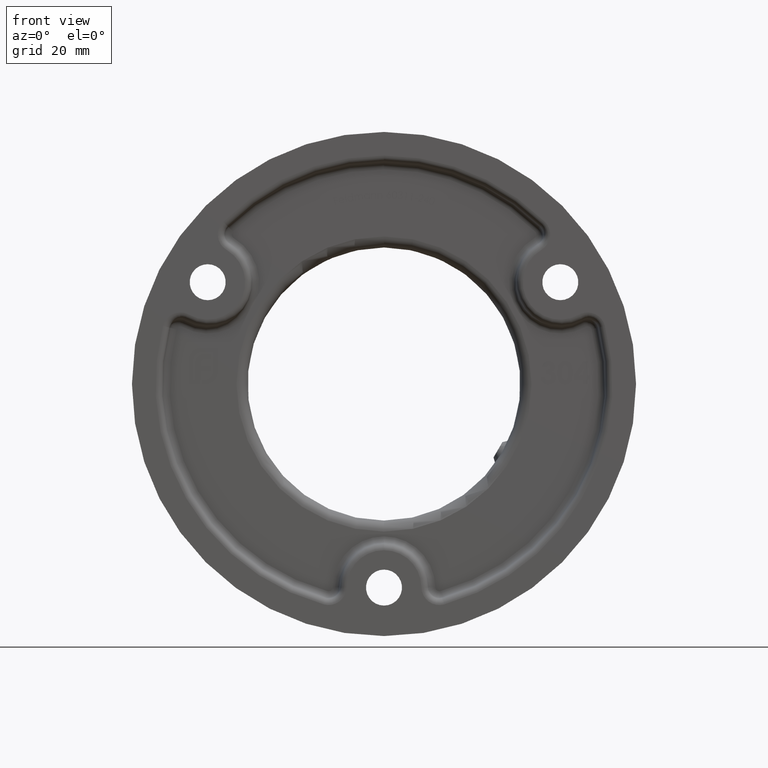
[diagram: clean part render]
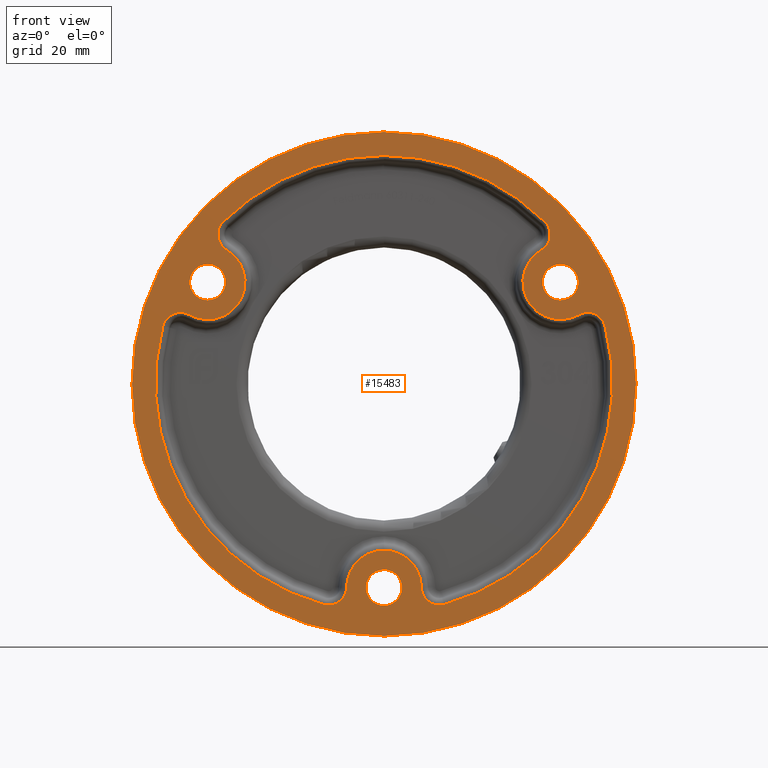
[diagram: same view with one face highlighted and labeled with its STEP entity id]
A machine part, front view. The second image highlights one B-rep face of the part: STEP entity #15483.
In plain terms, the highlighted planar face has unit normal (0, 1, 0).
Its self-contained STEP definition (entity closure, byte-faithful):
#33 = ORIENTED_EDGE ( 'NONE', *, *, #13000, .T. ) ;
#52 = CARTESIAN_POINT ( 'NONE',  ( 0.000000000000000000, 0.000000000000000000, -36.75000000000000000 ) ) ;
#440 = EDGE_CURVE ( 'NONE', #10031, #14922, #17151, .T. ) ;
#532 = CARTESIAN_POINT ( 'NONE',  ( 0.000000000000000000, 0.000000000000000000, 41.25000000000000000 ) ) ;
#540 = CARTESIAN_POINT ( 'NONE',  ( -29.03707906009376316, 0.000000000000000000, 29.29864399008706144 ) ) ;
#565 = DIRECTION ( 'NONE',  ( 0.000000000000000000, 0.000000000000000000, 1.000000000000000000 ) ) ;
#729 = FACE_BOUND ( 'NONE', #15085, .T. ) ;
#745 = ORIENTED_EDGE ( 'NONE', *, *, #19442, .T. ) ;
#1175 = FACE_BOUND ( 'NONE', #11156, .T. ) ;
#1508 = CARTESIAN_POINT ( 'NONE',  ( 0.000000000000000000, 0.000000000000000000, -36.75000000000000000 ) ) ;
#1526 = DIRECTION ( 'NONE',  ( -0.000000000000000000, -1.000000000000000000, -0.000000000000000000 ) ) ;
#1615 = DIRECTION ( 'NONE',  ( 0.000000000000000000, 0.000000000000000000, 1.000000000000000000 ) ) ;
#1662 = AXIS2_PLACEMENT_3D ( 'NONE', #2095, #2026, #15028 ) ;
#1788 = AXIS2_PLACEMENT_3D ( 'NONE', #1508, #15988, #20913 ) ;
#1829 = VERTEX_POINT ( 'NONE', #10532 ) ;
#1893 = FACE_BOUND ( 'NONE', #11206, .T. ) ;
#1928 = EDGE_CURVE ( 'NONE', #15359, #6744, #7937, .T. ) ;
#2009 = CIRCLE ( 'NONE', #20270, 3.250000000000002665 ) ;
#2026 = DIRECTION ( 'NONE',  ( 0.000000000000000000, 1.000000000000000000, 0.000000000000000000 ) ) ;
#2095 = CARTESIAN_POINT ( 'NONE',  ( 0.000000000000000000, 0.000000000000000000, 0.000000000000000000 ) ) ;
#2134 = EDGE_CURVE ( 'NONE', #19832, #15022, #6165, .T. ) ;
#2248 = EDGE_CURVE ( 'NONE', #10167, #18521, #13982, .T. ) ;
#2304 = CARTESIAN_POINT ( 'NONE',  ( 6.749730941703928622, 0.000000000000000000, -36.68973214285715301 ) ) ;
#2354 = DIRECTION ( 'NONE',  ( 0.000000000000000000, 0.000000000000000000, 1.000000000000000000 ) ) ;
#2403 = EDGE_CURVE ( 'NONE', #11425, #18010, #4794, .T. ) ;
#2482 = CARTESIAN_POINT ( 'NONE',  ( 36.74891058987022063, 0.000000000000000000, 9.670448306967221797 ) ) ;
#2689 = CARTESIAN_POINT ( 'NONE',  ( 9.999601395116934910, 0.000000000000000000, -36.66071428571429180 ) ) ;
#2769 = AXIS2_PLACEMENT_3D ( 'NONE', #11508, #13121, #13194 ) ;
#2853 = VERTEX_POINT ( 'NONE', #532 ) ;
#2878 = DIRECTION ( 'NONE',  ( 0.000000000000000000, 1.000000000000000000, 0.000000000000000000 ) ) ;
#2988 = EDGE_CURVE ( 'NONE', #7629, #12176, #15265, .T. ) ;
#3177 = AXIS2_PLACEMENT_3D ( 'NONE', #52, #11293, #1615 ) ;
#3358 = CARTESIAN_POINT ( 'NONE',  ( -36.74891058987008563, 0.000000000000000000, 12.92044830696772806 ) ) ;
#3455 = AXIS2_PLACEMENT_3D ( 'NONE', #19972, #11734, #3834 ) ;
#3456 = CIRCLE ( 'NONE', #12044, 3.249999999999996003 ) ;
#3493 = DIRECTION ( 'NONE',  ( 0.000000000000000000, 0.000000000000000000, 1.000000000000000000 ) ) ;
#3498 = CARTESIAN_POINT ( 'NONE',  ( 31.82643358907828812, 0.000000000000000000, 18.37499999999970512 ) ) ;
#3734 = ORIENTED_EDGE ( 'NONE', *, *, #19958, .T. ) ;
#3738 = AXIS2_PLACEMENT_3D ( 'NONE', #14188, #6134, #4590 ) ;
#3834 = DIRECTION ( 'NONE',  ( 0.000000000000000000, 0.000000000000000000, 1.000000000000000000 ) ) ;
#3858 = AXIS2_PLACEMENT_3D ( 'NONE', #19191, #9398, #17435 ) ;
#3894 = VERTEX_POINT ( 'NONE', #12366 ) ;
#3919 = EDGE_CURVE ( 'NONE', #18010, #11425, #5406, .T. ) ;
#4014 = EDGE_CURVE ( 'NONE', #7437, #6589, #7914, .T. ) ;
#4206 = ORIENTED_EDGE ( 'NONE', *, *, #16157, .T. ) ;
#4429 = CIRCLE ( 'NONE', #18807, 41.24999999999999289 ) ;
#4472 = CIRCLE ( 'NONE', #1788, 6.749999999999999112 ) ;
#4534 = CARTESIAN_POINT ( 'NONE',  ( 3.980102097228905134E-16, 0.000000000000000000, -40.00000000000000000 ) ) ;
#4590 = DIRECTION ( 'NONE',  ( 0.000000000000000000, 0.000000000000000000, 1.000000000000000000 ) ) ;
#4732 = DIRECTION ( 'NONE',  ( 0.000000000000000000, 0.000000000000000000, 1.000000000000000000 ) ) ;
#4794 = CIRCLE ( 'NONE', #16435, 3.250000000000006217 ) ;
#4872 = DIRECTION ( 'NONE',  ( 0.000000000000000000, 0.000000000000000000, 1.000000000000000000 ) ) ;
#5042 = CARTESIAN_POINT ( 'NONE',  ( 36.74891058987022063, 0.000000000000000000, 9.670448306967221797 ) ) ;
#5406 = CIRCLE ( 'NONE', #16196, 3.250000000000006217 ) ;
#5424 = CARTESIAN_POINT ( 'NONE',  ( 36.74891058987022063, 0.000000000000000000, 12.92044830696722180 ) ) ;
#5485 = DIRECTION ( 'NONE',  ( 0.000000000000000000, 0.000000000000000000, 1.000000000000000000 ) ) ;
#5514 = VERTEX_POINT ( 'NONE', #9733 ) ;
#5686 = FACE_OUTER_BOUND ( 'NONE', #17442, .T. ) ;
#5721 = CIRCLE ( 'NONE', #1662, 41.24999999999999289 ) ;
#5862 = AXIS2_PLACEMENT_3D ( 'NONE', #12619, #20585, #4732 ) ;
#5969 = ORIENTED_EDGE ( 'NONE', *, *, #2134, .T. ) ;
#5984 = AXIS2_PLACEMENT_3D ( 'NONE', #18593, #11898, #20213 ) ;
#6134 = DIRECTION ( 'NONE',  ( 0.000000000000000000, 1.000000000000000000, 0.000000000000000000 ) ) ;
#6165 = CIRCLE ( 'NONE', #2769, 3.249999999999996003 ) ;
#6589 = VERTEX_POINT ( 'NONE', #5424 ) ;
#6696 = CARTESIAN_POINT ( 'NONE',  ( 39.89190952189857597, 0.000000000000000000, 10.49752612269467988 ) ) ;
#6744 = VERTEX_POINT ( 'NONE', #13590 ) ;
#6849 = DIRECTION ( 'NONE',  ( 0.000000000000000000, 0.000000000000000000, 1.000000000000000000 ) ) ;
#6865 = CIRCLE ( 'NONE', #15735, 41.25000000000000000 ) ;
#6873 = DIRECTION ( 'NONE',  ( 0.000000000000000000, 0.000000000000000000, 1.000000000000000000 ) ) ;
#7437 = VERTEX_POINT ( 'NONE', #15508 ) ;
#7629 = VERTEX_POINT ( 'NONE', #3358 ) ;
#7713 = EDGE_CURVE ( 'NONE', #18521, #10167, #2009, .T. ) ;
#7745 = CARTESIAN_POINT ( 'NONE',  ( 31.82643358907828812, 0.000000000000000000, 18.37499999999970512 ) ) ;
#7795 = CIRCLE ( 'NONE', #3858, 6.749999999999999112 ) ;
#7914 = CIRCLE ( 'NONE', #15130, 3.249999999999999556 ) ;
#7937 = CIRCLE ( 'NONE', #16035, 45.50000000000000000 ) ;
#7987 = CARTESIAN_POINT ( 'NONE',  ( 0.000000000000000000, 0.000000000000000000, 0.000000000000000000 ) ) ;
#8160 = VERTEX_POINT ( 'NONE', #540 ) ;
#8267 = ORIENTED_EDGE ( 'NONE', *, *, #17965, .T. ) ;
#8420 = ORIENTED_EDGE ( 'NONE', *, *, #4014, .T. ) ;
#8449 = DIRECTION ( 'NONE',  ( 0.000000000000000000, 1.000000000000000000, 0.000000000000000000 ) ) ;
#8509 = VERTEX_POINT ( 'NONE', #10993 ) ;
#8645 = DIRECTION ( 'NONE',  ( 0.000000000000000000, 1.000000000000000000, 0.000000000000000000 ) ) ;
#8693 = DIRECTION ( 'NONE',  ( 0.000000000000000000, 1.000000000000000000, 0.000000000000000000 ) ) ;
#8804 = CIRCLE ( 'NONE', #14402, 6.749999999999999112 ) ;
#8831 = DIRECTION ( 'NONE',  ( 0.000000000000000000, 0.000000000000000000, 1.000000000000000000 ) ) ;
#8847 = ORIENTED_EDGE ( 'NONE', *, *, #3919, .T. ) ;
#8985 = DIRECTION ( 'NONE',  ( 0.000000000000000000, 1.000000000000000000, 0.000000000000000000 ) ) ;
#9398 = DIRECTION ( 'NONE',  ( -0.000000000000000000, -1.000000000000000000, -0.000000000000000000 ) ) ;
#9399 = ORIENTED_EDGE ( 'NONE', *, *, #7713, .T. ) ;
#9440 = EDGE_CURVE ( 'NONE', #8509, #13302, #11076, .T. ) ;
#9688 = DIRECTION ( 'NONE',  ( 0.000000000000000000, 1.000000000000000000, 0.000000000000000000 ) ) ;
#9733 = CARTESIAN_POINT ( 'NONE',  ( 0.000000000000000000, 0.000000000000000000, -30.00000000000000000 ) ) ;
#9862 = DIRECTION ( 'NONE',  ( 0.000000000000000000, 0.000000000000000000, 1.000000000000000000 ) ) ;
#9921 = CARTESIAN_POINT ( 'NONE',  ( 0.000000000000000000, 0.000000000000000000, 0.000000000000000000 ) ) ;
#9962 = CARTESIAN_POINT ( 'NONE',  ( 0.000000000000000000, 0.000000000000000000, 0.000000000000000000 ) ) ;
#9998 = DIRECTION ( 'NONE',  ( 0.000000000000000000, 0.000000000000000000, 1.000000000000000000 ) ) ;
#10031 = VERTEX_POINT ( 'NONE', #15020 ) ;
#10167 = VERTEX_POINT ( 'NONE', #20668 ) ;
#10170 = AXIS2_PLACEMENT_3D ( 'NONE', #9921, #11537, #3493 ) ;
#10455 = CARTESIAN_POINT ( 'NONE',  ( 26.74930919475343671, 0.000000000000000000, 26.99026597874647848 ) ) ;
#10532 = CARTESIAN_POINT ( 'NONE',  ( -28.39937462290868098, 0.000000000000000000, 24.19030453565418171 ) ) ;
#10678 = DIRECTION ( 'NONE',  ( 0.000000000000000000, 0.000000000000000000, 1.000000000000000000 ) ) ;
#10760 = DIRECTION ( 'NONE',  ( 0.000000000000000000, 0.000000000000000000, 1.000000000000000000 ) ) ;
#10940 = CARTESIAN_POINT ( 'NONE',  ( -31.82643358907803588, 0.000000000000000000, 21.62500000000015632 ) ) ;
#10993 = CARTESIAN_POINT ( 'NONE',  ( 0.000000000000000000, 0.000000000000000000, -33.49999999999999289 ) ) ;
#11076 = CIRCLE ( 'NONE', #14354, 3.250000000000002665 ) ;
#11156 = EDGE_LOOP ( 'NONE', ( #20223, #9399 ) ) ;
#11157 = AXIS2_PLACEMENT_3D ( 'NONE', #7745, #1526, #19169 ) ;
#11206 = EDGE_LOOP ( 'NONE', ( #12038, #33, #16674, #19104, #8420, #18265, #13454, #4206, #745, #17890, #5969, #11930, #8267, #11456, #3734, #20759 ) ) ;
#11293 = DIRECTION ( 'NONE',  ( 0.000000000000000000, 1.000000000000000000, 0.000000000000000000 ) ) ;
#11425 = VERTEX_POINT ( 'NONE', #20434 ) ;
#11456 = ORIENTED_EDGE ( 'NONE', *, *, #2988, .T. ) ;
#11508 = CARTESIAN_POINT ( 'NONE',  ( -9.999601395116934910, 0.000000000000000000, -36.66071428571429180 ) ) ;
#11537 = DIRECTION ( 'NONE',  ( 0.000000000000000000, 1.000000000000000000, 0.000000000000000000 ) ) ;
#11560 = CARTESIAN_POINT ( 'NONE',  ( 5.572142936120457130E-15, 0.000000000000000000, 45.50000000000000000 ) ) ;
#11646 = EDGE_CURVE ( 'NONE', #1829, #8160, #3456, .T. ) ;
#11691 = DIRECTION ( 'NONE',  ( 0.000000000000000000, 1.000000000000000000, 0.000000000000000000 ) ) ;
#11734 = DIRECTION ( 'NONE',  ( 0.000000000000000000, 1.000000000000000000, 0.000000000000000000 ) ) ;
#11898 = DIRECTION ( 'NONE',  ( 0.000000000000000000, 1.000000000000000000, 0.000000000000000000 ) ) ;
#11930 = ORIENTED_EDGE ( 'NONE', *, *, #15364, .T. ) ;
#11967 = PLANE ( 'NONE',  #5984 ) ;
#11994 = FACE_BOUND ( 'NONE', #14311, .T. ) ;
#12007 = CARTESIAN_POINT ( 'NONE',  ( 0.000000000000000000, 0.000000000000000000, 0.000000000000000000 ) ) ;
#12038 = ORIENTED_EDGE ( 'NONE', *, *, #16039, .T. ) ;
#12044 = AXIS2_PLACEMENT_3D ( 'NONE', #19659, #11691, #9998 ) ;
#12176 = VERTEX_POINT ( 'NONE', #17595 ) ;
#12366 = CARTESIAN_POINT ( 'NONE',  ( -39.89190952189843387, 0.000000000000000000, 10.49752612269524477 ) ) ;
#12440 = AXIS2_PLACEMENT_3D ( 'NONE', #2482, #16651, #565 ) ;
#12502 = EDGE_CURVE ( 'NONE', #6589, #13938, #16339, .T. ) ;
#12514 = CIRCLE ( 'NONE', #10170, 41.25000000000000000 ) ;
#12562 = DIRECTION ( 'NONE',  ( 0.000000000000000000, 1.000000000000000000, 0.000000000000000000 ) ) ;
#12619 = CARTESIAN_POINT ( 'NONE',  ( -36.74891058987008563, 0.000000000000000000, 9.670448306967740493 ) ) ;
#12680 = CARTESIAN_POINT ( 'NONE',  ( -31.82643358907803588, 0.000000000000000000, 18.37500000000015277 ) ) ;
#12754 = AXIS2_PLACEMENT_3D ( 'NONE', #10455, #8693, #8831 ) ;
#12868 = EDGE_CURVE ( 'NONE', #5514, #19832, #4472, .T. ) ;
#12952 = CARTESIAN_POINT ( 'NONE',  ( 31.82643358907828812, 0.000000000000000000, 15.12499999999970157 ) ) ;
#13000 = EDGE_CURVE ( 'NONE', #2853, #10031, #12514, .T. ) ;
#13121 = DIRECTION ( 'NONE',  ( 0.000000000000000000, 1.000000000000000000, 0.000000000000000000 ) ) ;
#13194 = DIRECTION ( 'NONE',  ( 0.000000000000000000, 0.000000000000000000, 1.000000000000000000 ) ) ;
#13289 = AXIS2_PLACEMENT_3D ( 'NONE', #2689, #12562, #10678 ) ;
#13302 = VERTEX_POINT ( 'NONE', #4534 ) ;
#13336 = DIRECTION ( 'NONE',  ( 0.000000000000000000, 1.000000000000000000, 0.000000000000000000 ) ) ;
#13340 = CARTESIAN_POINT ( 'NONE',  ( 28.39937462290902204, 0.000000000000000000, 24.19030453565377670 ) ) ;
#13454 = ORIENTED_EDGE ( 'NONE', *, *, #13969, .T. ) ;
#13590 = CARTESIAN_POINT ( 'NONE',  ( 0.000000000000000000, 0.000000000000000000, -45.50000000000000000 ) ) ;
#13618 = EDGE_CURVE ( 'NONE', #6744, #15359, #18078, .T. ) ;
#13938 = VERTEX_POINT ( 'NONE', #6696 ) ;
#13969 = EDGE_CURVE ( 'NONE', #13938, #17956, #4429, .T. ) ;
#13982 = CIRCLE ( 'NONE', #3455, 3.250000000000002665 ) ;
#14188 = CARTESIAN_POINT ( 'NONE',  ( -36.74891058987008563, 0.000000000000000000, 9.670448306967740493 ) ) ;
#14264 = CARTESIAN_POINT ( 'NONE',  ( 10.85483046180456768, 0.000000000000000000, -39.79617011278195093 ) ) ;
#14311 = EDGE_LOOP ( 'NONE', ( #8847, #19694 ) ) ;
#14354 = AXIS2_PLACEMENT_3D ( 'NONE', #16160, #9688, #20885 ) ;
#14390 = DIRECTION ( 'NONE',  ( -0.000000000000000000, -1.000000000000000000, -0.000000000000000000 ) ) ;
#14402 = AXIS2_PLACEMENT_3D ( 'NONE', #12680, #14390, #9862 ) ;
#14580 = ORIENTED_EDGE ( 'NONE', *, *, #9440, .T. ) ;
#14789 = DIRECTION ( 'NONE',  ( 0.000000000000000000, 1.000000000000000000, 0.000000000000000000 ) ) ;
#14804 = DIRECTION ( 'NONE',  ( 0.000000000000000000, 0.000000000000000000, 1.000000000000000000 ) ) ;
#14922 = VERTEX_POINT ( 'NONE', #13340 ) ;
#14939 = CIRCLE ( 'NONE', #13289, 3.249999999999996003 ) ;
#14956 = CARTESIAN_POINT ( 'NONE',  ( 0.000000000000000000, 0.000000000000000000, 0.000000000000000000 ) ) ;
#14986 = CARTESIAN_POINT ( 'NONE',  ( -10.85483046180459610, 0.000000000000000000, -39.79617011278194383 ) ) ;
#15020 = CARTESIAN_POINT ( 'NONE',  ( 29.03707906009419304, 0.000000000000000000, 29.29864399008663511 ) ) ;
#15022 = VERTEX_POINT ( 'NONE', #14986 ) ;
#15028 = DIRECTION ( 'NONE',  ( 0.000000000000000000, 0.000000000000000000, 1.000000000000000000 ) ) ;
#15085 = EDGE_LOOP ( 'NONE', ( #14580, #18469 ) ) ;
#15130 = AXIS2_PLACEMENT_3D ( 'NONE', #5042, #14789, #6873 ) ;
#15265 = CIRCLE ( 'NONE', #3738, 3.249999999999987121 ) ;
#15359 = VERTEX_POINT ( 'NONE', #11560 ) ;
#15364 = EDGE_CURVE ( 'NONE', #15022, #3894, #5721, .T. ) ;
#15483 = ADVANCED_FACE ( 'NONE', ( #1893, #5686, #729, #11994, #1175 ), #11967, .F. ) ;
#15508 = CARTESIAN_POINT ( 'NONE',  ( 35.14910556461284585, 0.000000000000000000, 12.49942760720277413 ) ) ;
#15546 = VERTEX_POINT ( 'NONE', #2304 ) ;
#15735 = AXIS2_PLACEMENT_3D ( 'NONE', #12007, #8985, #2354 ) ;
#15864 = CARTESIAN_POINT ( 'NONE',  ( -6.749730941703936615, 0.000000000000000000, -36.68973214285714590 ) ) ;
#15988 = DIRECTION ( 'NONE',  ( -0.000000000000000000, -1.000000000000000000, -0.000000000000000000 ) ) ;
#16035 = AXIS2_PLACEMENT_3D ( 'NONE', #7987, #19118, #4872 ) ;
#16039 = EDGE_CURVE ( 'NONE', #8160, #2853, #6865, .T. ) ;
#16157 = EDGE_CURVE ( 'NONE', #17956, #15546, #14939, .T. ) ;
#16160 = CARTESIAN_POINT ( 'NONE',  ( 0.000000000000000000, 0.000000000000000000, -36.75000000000000000 ) ) ;
#16196 = AXIS2_PLACEMENT_3D ( 'NONE', #18926, #20547, #10760 ) ;
#16339 = CIRCLE ( 'NONE', #12440, 3.249999999999999556 ) ;
#16435 = AXIS2_PLACEMENT_3D ( 'NONE', #17339, #2878, #18952 ) ;
#16651 = DIRECTION ( 'NONE',  ( 0.000000000000000000, 1.000000000000000000, 0.000000000000000000 ) ) ;
#16674 = ORIENTED_EDGE ( 'NONE', *, *, #440, .T. ) ;
#17151 = CIRCLE ( 'NONE', #12754, 3.249999999999999556 ) ;
#17237 = ORIENTED_EDGE ( 'NONE', *, *, #13618, .F. ) ;
#17339 = CARTESIAN_POINT ( 'NONE',  ( -31.82643358907803588, 0.000000000000000000, 18.37500000000015277 ) ) ;
#17383 = CIRCLE ( 'NONE', #11157, 6.749999999999999112 ) ;
#17435 = DIRECTION ( 'NONE',  ( -1.776356839400250859E-15, 0.000000000000000000, 1.000000000000000000 ) ) ;
#17442 = EDGE_LOOP ( 'NONE', ( #17237, #19514 ) ) ;
#17595 = CARTESIAN_POINT ( 'NONE',  ( -35.14910556461267532, 0.000000000000000000, 12.49942760720327861 ) ) ;
#17675 = CIRCLE ( 'NONE', #5862, 3.249999999999987121 ) ;
#17890 = ORIENTED_EDGE ( 'NONE', *, *, #12868, .T. ) ;
#17956 = VERTEX_POINT ( 'NONE', #14264 ) ;
#17965 = EDGE_CURVE ( 'NONE', #3894, #7629, #17675, .T. ) ;
#18010 = VERTEX_POINT ( 'NONE', #10940 ) ;
#18078 = CIRCLE ( 'NONE', #19088, 45.50000000000000000 ) ;
#18136 = EDGE_CURVE ( 'NONE', #13302, #8509, #20945, .T. ) ;
#18265 = ORIENTED_EDGE ( 'NONE', *, *, #12502, .T. ) ;
#18469 = ORIENTED_EDGE ( 'NONE', *, *, #18136, .T. ) ;
#18521 = VERTEX_POINT ( 'NONE', #12952 ) ;
#18593 = CARTESIAN_POINT ( 'NONE',  ( 0.000000000000000000, 0.000000000000000000, 0.000000000000000000 ) ) ;
#18807 = AXIS2_PLACEMENT_3D ( 'NONE', #14956, #8449, #5485 ) ;
#18926 = CARTESIAN_POINT ( 'NONE',  ( -31.82643358907803588, 0.000000000000000000, 18.37500000000015277 ) ) ;
#18952 = DIRECTION ( 'NONE',  ( 0.000000000000000000, 0.000000000000000000, 1.000000000000000000 ) ) ;
#19088 = AXIS2_PLACEMENT_3D ( 'NONE', #9962, #13336, #6849 ) ;
#19104 = ORIENTED_EDGE ( 'NONE', *, *, #19807, .T. ) ;
#19118 = DIRECTION ( 'NONE',  ( 0.000000000000000000, 1.000000000000000000, 0.000000000000000000 ) ) ;
#19169 = DIRECTION ( 'NONE',  ( 1.027984282060330356E-15, 0.000000000000000000, 1.000000000000000000 ) ) ;
#19191 = CARTESIAN_POINT ( 'NONE',  ( 0.000000000000000000, 0.000000000000000000, -36.75000000000000000 ) ) ;
#19442 = EDGE_CURVE ( 'NONE', #15546, #5514, #7795, .T. ) ;
#19514 = ORIENTED_EDGE ( 'NONE', *, *, #1928, .F. ) ;
#19659 = CARTESIAN_POINT ( 'NONE',  ( -26.74930919475306723, 0.000000000000000000, 26.99026597874685507 ) ) ;
#19694 = ORIENTED_EDGE ( 'NONE', *, *, #2403, .T. ) ;
#19807 = EDGE_CURVE ( 'NONE', #14922, #7437, #17383, .T. ) ;
#19832 = VERTEX_POINT ( 'NONE', #15864 ) ;
#19958 = EDGE_CURVE ( 'NONE', #12176, #1829, #8804, .T. ) ;
#19972 = CARTESIAN_POINT ( 'NONE',  ( 31.82643358907828812, 0.000000000000000000, 18.37499999999970512 ) ) ;
#20213 = DIRECTION ( 'NONE',  ( 0.000000000000000000, -0.000000000000000000, 1.000000000000000000 ) ) ;
#20223 = ORIENTED_EDGE ( 'NONE', *, *, #2248, .T. ) ;
#20270 = AXIS2_PLACEMENT_3D ( 'NONE', #3498, #8645, #14804 ) ;
#20434 = CARTESIAN_POINT ( 'NONE',  ( -31.82643358907803588, 0.000000000000000000, 15.12500000000014744 ) ) ;
#20547 = DIRECTION ( 'NONE',  ( 0.000000000000000000, 1.000000000000000000, 0.000000000000000000 ) ) ;
#20585 = DIRECTION ( 'NONE',  ( 0.000000000000000000, 1.000000000000000000, 0.000000000000000000 ) ) ;
#20668 = CARTESIAN_POINT ( 'NONE',  ( 31.82643358907828812, 0.000000000000000000, 21.62499999999970868 ) ) ;
#20759 = ORIENTED_EDGE ( 'NONE', *, *, #11646, .T. ) ;
#20885 = DIRECTION ( 'NONE',  ( 0.000000000000000000, 0.000000000000000000, 1.000000000000000000 ) ) ;
#20913 = DIRECTION ( 'NONE',  ( 0.000000000000000000, 0.000000000000000000, 1.000000000000000000 ) ) ;
#20945 = CIRCLE ( 'NONE', #3177, 3.250000000000002665 ) ;